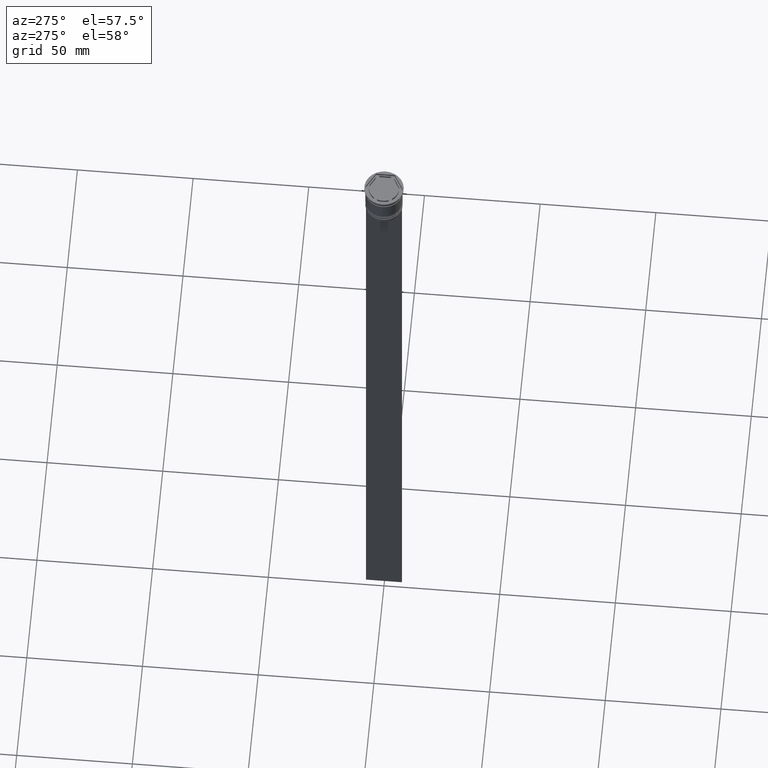
[diagram: clean part render]
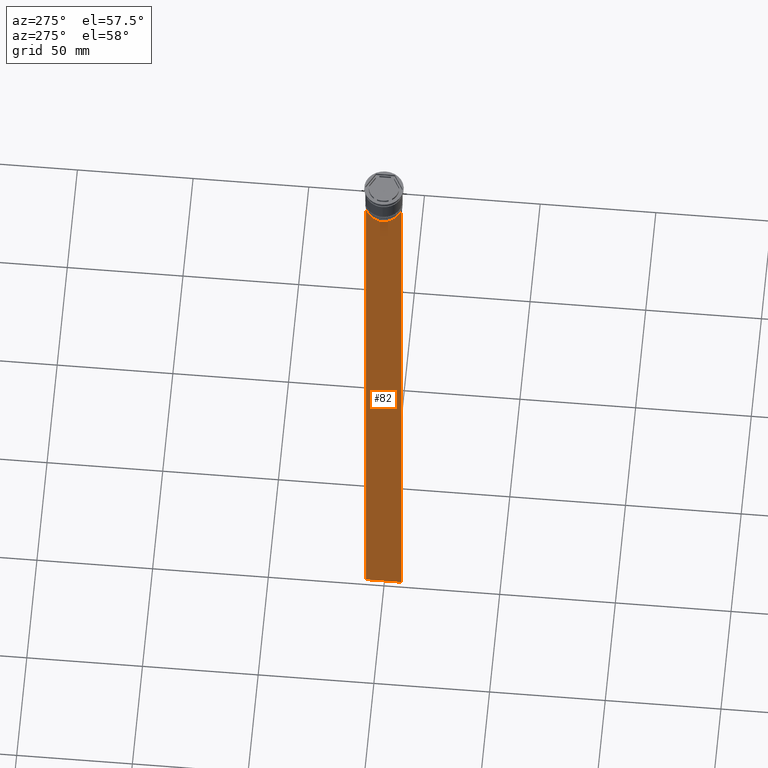
[diagram: same view with one face highlighted and labeled with its STEP entity id]
A machine part, auxiliary view. The second image highlights one B-rep face of the part: STEP entity #82.
In plain terms, the highlighted planar face has unit normal (-1, 0, 0).
Its self-contained STEP definition (entity closure, byte-faithful):
#25 = VECTOR ( 'NONE', #1576, 1000.000000000000000 ) ;
#44 = ORIENTED_EDGE ( 'NONE', *, *, #97, .F. ) ;
#82 = ADVANCED_FACE ( 'NONE', ( #830 ), #634, .T. ) ;
#97 = EDGE_CURVE ( 'NONE', #572, #1181, #1765, .T. ) ;
#102 = DIRECTION ( 'NONE',  ( 0.000000000000000000, 0.000000000000000000, -1.000000000000000000 ) ) ;
#124 = CARTESIAN_POINT ( 'NONE',  ( -0.4999999999999998890, 6.881860213634098500, -14.00000000000000178 ) ) ;
#146 = EDGE_CURVE ( 'NONE', #1181, #906, #2191, .T. ) ;
#168 = DIRECTION ( 'NONE',  ( 0.000000000000000000, -1.000000000000000000, 0.000000000000000000 ) ) ;
#178 = EDGE_CURVE ( 'NONE', #773, #1157, #2330, .T. ) ;
#226 = CARTESIAN_POINT ( 'NONE',  ( -0.4999999999999998890, -6.714736947305992132, -14.16668390685738999 ) ) ;
#291 = CARTESIAN_POINT ( 'NONE',  ( -0.4999999999999998890, 6.380438856379708312, 0.000000000000000000 ) ) ;
#292 = CARTESIAN_POINT ( 'NONE',  ( -0.4999999999999998890, 6.380438856379708312, -14.50000000000000000 ) ) ;
#318 = DIRECTION ( 'NONE',  ( 0.000000000000000000, 1.000000000000000000, 0.000000000000000000 ) ) ;
#325 = LINE ( 'NONE', #291, #25 ) ;
#341 = CARTESIAN_POINT ( 'NONE',  ( -0.4999999999999998890, -7.749999999999999112, -314.0000000000000000 ) ) ;
#491 = CARTESIAN_POINT ( 'NONE',  ( -0.4999999999999998890, 7.750000000000002665, -314.0000000000000000 ) ) ;
#500 = ORIENTED_EDGE ( 'NONE', *, *, #178, .F. ) ;
#503 = CARTESIAN_POINT ( 'NONE',  ( -0.4999999999999998890, 6.380438856379708312, -14.50000000000000000 ) ) ;
#521 = B_SPLINE_CURVE_WITH_KNOTS ( 'NONE', 3,
 ( #1325, #1888, #226, #2103 ),
 .UNSPECIFIED., .F., .F.,
 ( 4, 4 ),
 ( 0.02996184199614749730, 0.03067452609193703841 ),
 .UNSPECIFIED. ) ;
#529 = VERTEX_POINT ( 'NONE', #292 ) ;
#530 = CARTESIAN_POINT ( 'NONE',  ( -0.4999999999999998890, -6.380438856379708312, 0.000000000000000000 ) ) ;
#554 = ORIENTED_EDGE ( 'NONE', *, *, #957, .F. ) ;
#572 = VERTEX_POINT ( 'NONE', #1984 ) ;
#624 = DIRECTION ( 'NONE',  ( 0.000000000000000000, 0.000000000000000000, 1.000000000000000000 ) ) ;
#632 = ORIENTED_EDGE ( 'NONE', *, *, #1948, .F. ) ;
#634 = PLANE ( 'NONE',  #646 ) ;
#646 = AXIS2_PLACEMENT_3D ( 'NONE', #856, #2289, #624 ) ;
#653 = VECTOR ( 'NONE', #1443, 1000.000000000000000 ) ;
#665 = VECTOR ( 'NONE', #1790, 1000.000000000000000 ) ;
#687 = VECTOR ( 'NONE', #168, 1000.000000000000000 ) ;
#715 = ORIENTED_EDGE ( 'NONE', *, *, #1395, .F. ) ;
#773 = VERTEX_POINT ( 'NONE', #1496 ) ;
#776 = ORIENTED_EDGE ( 'NONE', *, *, #2366, .T. ) ;
#800 = VERTEX_POINT ( 'NONE', #1220 ) ;
#804 = CARTESIAN_POINT ( 'NONE',  ( -0.4999999999999998890, 6.881860213634098500, -14.00000000000000178 ) ) ;
#816 = CARTESIAN_POINT ( 'NONE',  ( -0.4999999999999998890, -7.749999999999999112, -314.0000000000000000 ) ) ;
#830 = FACE_OUTER_BOUND ( 'NONE', #1664, .T. ) ;
#856 = CARTESIAN_POINT ( 'NONE',  ( -0.4999999999999998890, -7.749999999999999112, 1.532224567009066840 ) ) ;
#906 = VERTEX_POINT ( 'NONE', #491 ) ;
#957 = EDGE_CURVE ( 'NONE', #1093, #1003, #1811, .T. ) ;
#989 = ORIENTED_EDGE ( 'NONE', *, *, #146, .F. ) ;
#1003 = VERTEX_POINT ( 'NONE', #1279 ) ;
#1063 = LINE ( 'NONE', #2133, #2388 ) ;
#1093 = VERTEX_POINT ( 'NONE', #1493 ) ;
#1114 = ORIENTED_EDGE ( 'NONE', *, *, #1873, .F. ) ;
#1131 = VERTEX_POINT ( 'NONE', #1324 ) ;
#1157 = VERTEX_POINT ( 'NONE', #804 ) ;
#1181 = VERTEX_POINT ( 'NONE', #816 ) ;
#1220 = CARTESIAN_POINT ( 'NONE',  ( -0.4999999999999998890, 6.380438856379708312, -17.00000000000000000 ) ) ;
#1264 = VECTOR ( 'NONE', #318, 1000.000000000000000 ) ;
#1279 = CARTESIAN_POINT ( 'NONE',  ( -0.4999999999999998890, -6.380438856379708312, -14.50000000000000000 ) ) ;
#1292 = EDGE_CURVE ( 'NONE', #1157, #529, #1530, .T. ) ;
#1324 = CARTESIAN_POINT ( 'NONE',  ( -0.4999999999999998890, -6.881860213634098500, -14.00000000000000178 ) ) ;
#1325 = CARTESIAN_POINT ( 'NONE',  ( -0.4999999999999998890, -6.380438856379708312, -14.50000000000000000 ) ) ;
#1347 = DIRECTION ( 'NONE',  ( 0.000000000000000000, -1.000000000000000000, 0.000000000000000000 ) ) ;
#1358 = CARTESIAN_POINT ( 'NONE',  ( -0.4999999999999998890, -7.749999999999999112, 1.532224567009066840 ) ) ;
#1395 = EDGE_CURVE ( 'NONE', #529, #800, #325, .T. ) ;
#1399 = EDGE_CURVE ( 'NONE', #800, #1093, #1063, .T. ) ;
#1428 = CARTESIAN_POINT ( 'NONE',  ( -0.4999999999999998890, -7.749999999999999112, -14.00000000000000178 ) ) ;
#1443 = DIRECTION ( 'NONE',  ( -0.000000000000000000, -0.000000000000000000, 1.000000000000000000 ) ) ;
#1450 = CARTESIAN_POINT ( 'NONE',  ( -0.4999999999999998890, 6.714736947114692711, -14.16668390704818847 ) ) ;
#1493 = CARTESIAN_POINT ( 'NONE',  ( -0.4999999999999998890, -6.380438856379708312, -17.00000000000000000 ) ) ;
#1494 = VECTOR ( 'NONE', #102, 1000.000000000000000 ) ;
#1496 = CARTESIAN_POINT ( 'NONE',  ( -0.4999999999999998890, 7.750000000000002665, -14.00000000000000178 ) ) ;
#1530 = B_SPLINE_CURVE_WITH_KNOTS ( 'NONE', 3,
 ( #124, #1450, #2157, #503 ),
 .UNSPECIFIED., .F., .F.,
 ( 4, 4 ),
 ( 0.01172465562756038263, 0.01243276816391822651 ),
 .UNSPECIFIED. ) ;
#1576 = DIRECTION ( 'NONE',  ( 0.000000000000000000, 0.000000000000000000, -1.000000000000000000 ) ) ;
#1625 = ORIENTED_EDGE ( 'NONE', *, *, #1292, .F. ) ;
#1664 = EDGE_LOOP ( 'NONE', ( #1625, #500, #776, #989, #44, #1114, #632, #554, #2248, #715 ) ) ;
#1765 = LINE ( 'NONE', #1358, #1494 ) ;
#1790 = DIRECTION ( 'NONE',  ( 0.000000000000000000, 0.000000000000000000, -1.000000000000000000 ) ) ;
#1811 = LINE ( 'NONE', #530, #653 ) ;
#1844 = CARTESIAN_POINT ( 'NONE',  ( -0.4999999999999998890, 7.750000000000002665, 1.532224567009066840 ) ) ;
#1873 = EDGE_CURVE ( 'NONE', #1131, #572, #1903, .T. ) ;
#1888 = CARTESIAN_POINT ( 'NONE',  ( -0.4999999999999998890, -6.547597841511246131, -14.33335192438652328 ) ) ;
#1903 = LINE ( 'NONE', #2092, #1938 ) ;
#1938 = VECTOR ( 'NONE', #1347, 1000.000000000000000 ) ;
#1948 = EDGE_CURVE ( 'NONE', #1003, #1131, #521, .T. ) ;
#1984 = CARTESIAN_POINT ( 'NONE',  ( -0.4999999999999998890, -7.749999999999999112, -14.00000000000000178 ) ) ;
#2092 = CARTESIAN_POINT ( 'NONE',  ( -0.4999999999999998890, -7.749999999999999112, -14.00000000000000178 ) ) ;
#2099 = LINE ( 'NONE', #1844, #665 ) ;
#2103 = CARTESIAN_POINT ( 'NONE',  ( -0.4999999999999998890, -6.881860213634098500, -14.00000000000000178 ) ) ;
#2133 = CARTESIAN_POINT ( 'NONE',  ( -0.4999999999999998890, 6.399999999999999467, -17.00000000000000000 ) ) ;
#2157 = CARTESIAN_POINT ( 'NONE',  ( -0.4999999999999998890, 6.547597841304911626, -14.33335192459222718 ) ) ;
#2191 = LINE ( 'NONE', #341, #1264 ) ;
#2248 = ORIENTED_EDGE ( 'NONE', *, *, #1399, .F. ) ;
#2289 = DIRECTION ( 'NONE',  ( -1.000000000000000000, 0.000000000000000000, 0.000000000000000000 ) ) ;
#2306 = DIRECTION ( 'NONE',  ( 0.000000000000000000, -1.000000000000000000, 0.000000000000000000 ) ) ;
#2330 = LINE ( 'NONE', #1428, #687 ) ;
#2366 = EDGE_CURVE ( 'NONE', #773, #906, #2099, .T. ) ;
#2388 = VECTOR ( 'NONE', #2306, 1000.000000000000000 ) ;